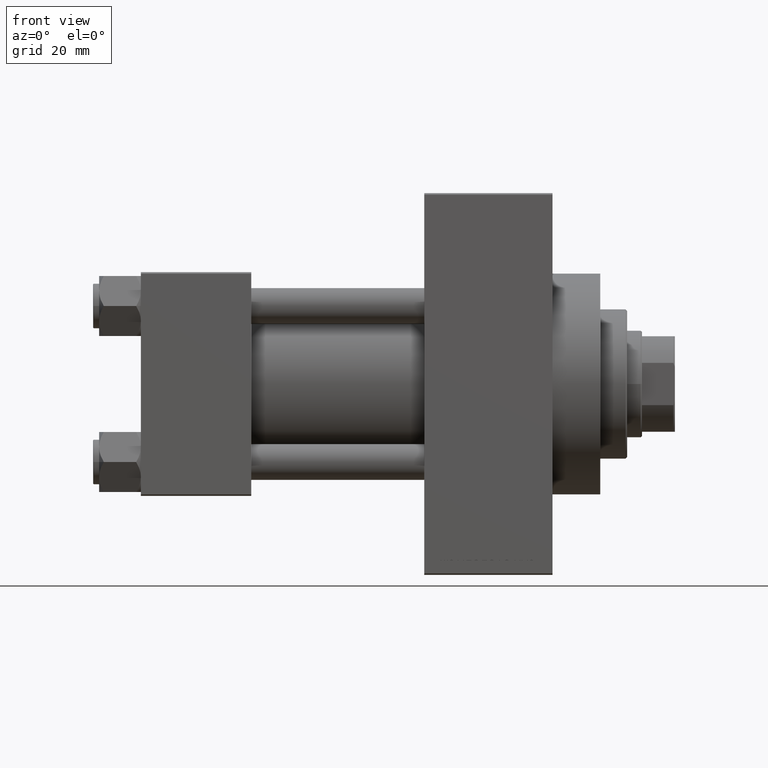
[diagram: clean part render]
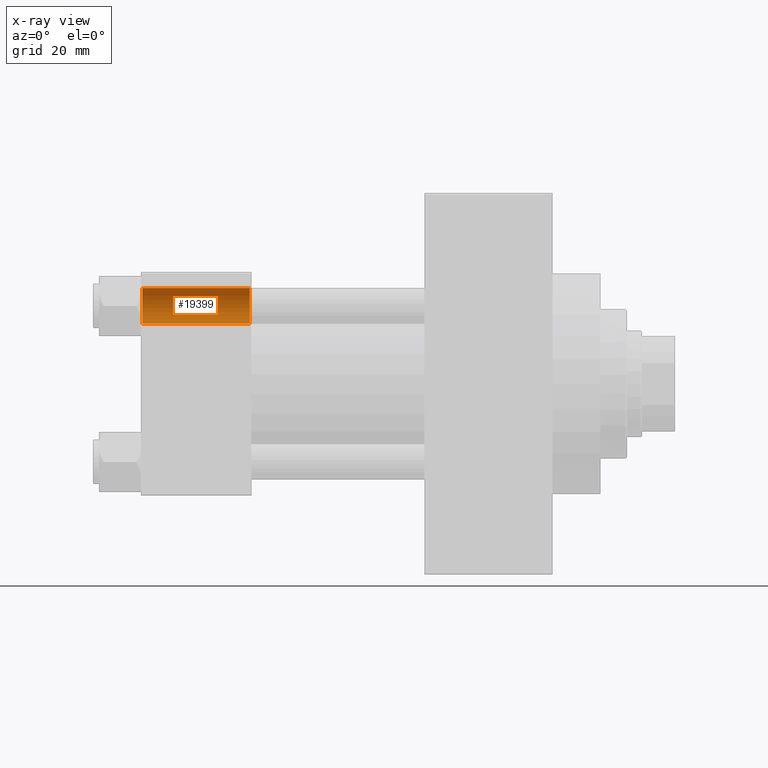
[diagram: x-ray — body ghosted, one internal face saturated and labeled with its STEP entity id]
A machine part, front view, then the same camera in x-ray: the body is ghosted and one INTERNAL B-rep face — a face not visible from any outside direction — is saturated and labeled: STEP entity #19399.
In plain terms, the highlighted cylindrical surface (edge-blend (fillet) strip) has radius 6 mm, axis along (-1, -0, -0).
Its self-contained STEP definition (entity closure, byte-faithful):
#398 = CARTESIAN_POINT ( 'NONE',  ( 36.50000000000003553, 26.14999999999999858, 26.15000000000000213 ) ) ;
#1869 = ORIENTED_EDGE ( 'NONE', *, *, #15127, .T. ) ;
#3427 = CYLINDRICAL_SURFACE ( 'NONE', #46884, 6.000000000000008882 ) ;
#3786 = EDGE_CURVE ( 'NONE', #39869, #30997, #9684, .T. ) ;
#3875 = AXIS2_PLACEMENT_3D ( 'NONE', #17966, #43656, #47256 ) ;
#4162 = VERTEX_POINT ( 'NONE', #34712 ) ;
#5248 = EDGE_LOOP ( 'NONE', ( #9103, #39006, #7732, #1869 ) ) ;
#5281 = EDGE_CURVE ( 'NONE', #39869, #31573, #44236, .T. ) ;
#7370 = DIRECTION ( 'NONE',  ( 0.000000000000000000, 0.000000000000000000, 1.000000000000000000 ) ) ;
#7732 = ORIENTED_EDGE ( 'NONE', *, *, #12374, .T. ) ;
#8825 = CARTESIAN_POINT ( 'NONE',  ( 37.00000000000000711, 26.14999999999999858, 32.15000000000001279 ) ) ;
#9103 = ORIENTED_EDGE ( 'NONE', *, *, #3786, .F. ) ;
#9684 = LINE ( 'NONE', #10140, #15053 ) ;
#10140 = CARTESIAN_POINT ( 'NONE',  ( 37.00000000000000711, 26.14999999999999858, 20.14999999999999858 ) ) ;
#12374 = EDGE_CURVE ( 'NONE', #31573, #4162, #41481, .T. ) ;
#14017 = CARTESIAN_POINT ( 'NONE',  ( 37.00000000000000711, 26.14999999999999858, 26.15000000000000213 ) ) ;
#15053 = VECTOR ( 'NONE', #29096, 1000.000000000000000 ) ;
#15127 = EDGE_CURVE ( 'NONE', #4162, #30997, #24572, .T. ) ;
#16969 = DIRECTION ( 'NONE',  ( -1.000000000000000000, -0.000000000000000000, -0.000000000000000000 ) ) ;
#17966 = CARTESIAN_POINT ( 'NONE',  ( 0.5000000000000213163, 26.14999999999999858, 26.15000000000000213 ) ) ;
#19399 = ADVANCED_FACE ( 'NONE', ( #42824 ), #3427, .F. ) ;
#23532 = AXIS2_PLACEMENT_3D ( 'NONE', #398, #36878, #7370 ) ;
#24235 = CARTESIAN_POINT ( 'NONE',  ( 36.50000000000003553, 26.14999999999999858, 20.14999999999999858 ) ) ;
#24572 = CIRCLE ( 'NONE', #3875, 6.000000000000008882 ) ;
#28632 = DIRECTION ( 'NONE',  ( 0.000000000000000000, 0.000000000000000000, 1.000000000000000000 ) ) ;
#29096 = DIRECTION ( 'NONE',  ( -1.000000000000000000, -0.000000000000000000, -0.000000000000000000 ) ) ;
#29953 = CARTESIAN_POINT ( 'NONE',  ( 36.50000000000003553, 26.14999999999999858, 32.15000000000001279 ) ) ;
#30997 = VERTEX_POINT ( 'NONE', #41594 ) ;
#31573 = VERTEX_POINT ( 'NONE', #29953 ) ;
#34712 = CARTESIAN_POINT ( 'NONE',  ( 0.5000000000000213163, 26.14999999999999858, 32.15000000000001279 ) ) ;
#36878 = DIRECTION ( 'NONE',  ( 1.000000000000000000, -0.000000000000000000, -0.000000000000000000 ) ) ;
#37535 = VECTOR ( 'NONE', #16969, 1000.000000000000000 ) ;
#39006 = ORIENTED_EDGE ( 'NONE', *, *, #5281, .T. ) ;
#39869 = VERTEX_POINT ( 'NONE', #24235 ) ;
#41481 = LINE ( 'NONE', #8825, #37535 ) ;
#41594 = CARTESIAN_POINT ( 'NONE',  ( 0.5000000000000213163, 26.14999999999999858, 20.14999999999999858 ) ) ;
#42592 = DIRECTION ( 'NONE',  ( -1.000000000000000000, -0.000000000000000000, -0.000000000000000000 ) ) ;
#42824 = FACE_OUTER_BOUND ( 'NONE', #5248, .T. ) ;
#43656 = DIRECTION ( 'NONE',  ( -1.000000000000000000, 0.000000000000000000, 0.000000000000000000 ) ) ;
#44236 = CIRCLE ( 'NONE', #23532, 6.000000000000008882 ) ;
#46884 = AXIS2_PLACEMENT_3D ( 'NONE', #14017, #42592, #28632 ) ;
#47256 = DIRECTION ( 'NONE',  ( 0.000000000000000000, 0.000000000000000000, 1.000000000000000000 ) ) ;